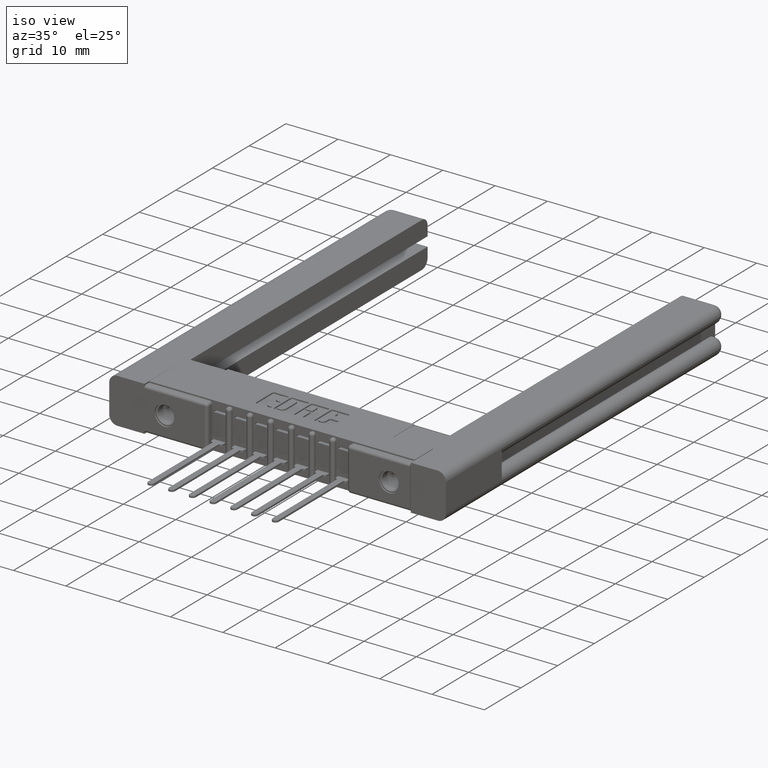
[diagram: clean part render]
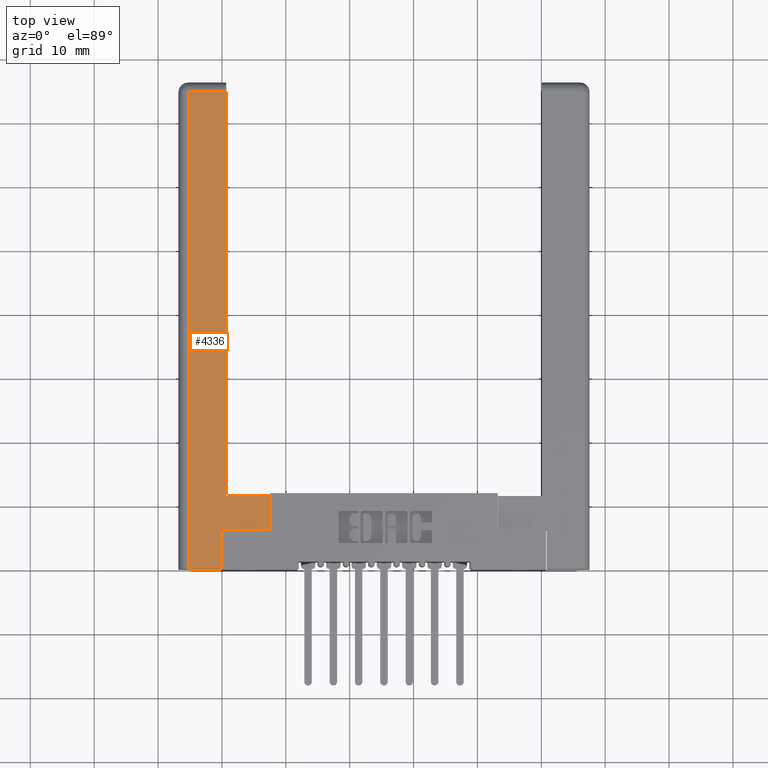
[diagram: tour spotlight — one face highlighted and labeled with its STEP entity id]
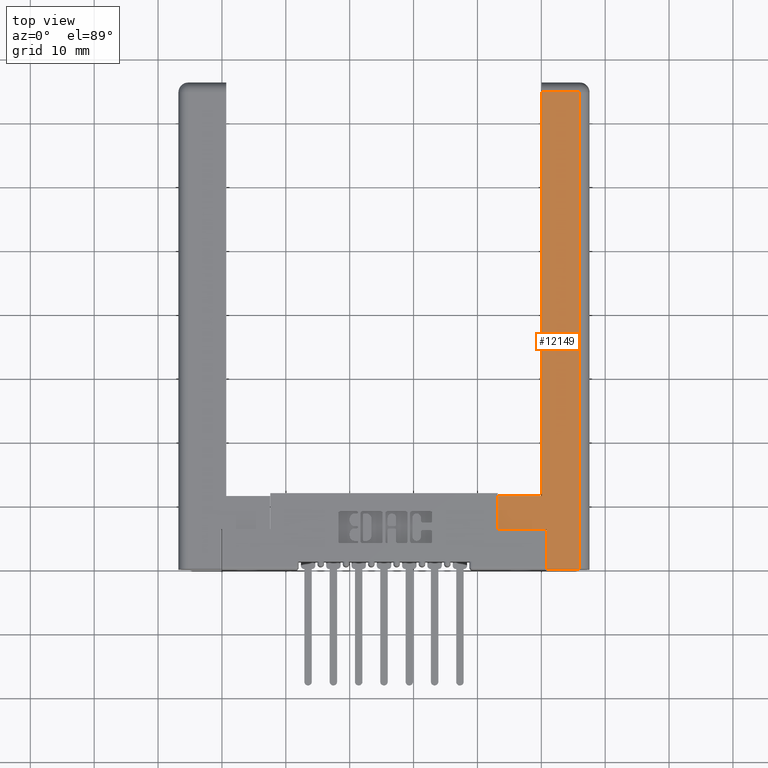
[diagram: tour spotlight — one face highlighted and labeled with its STEP entity id]
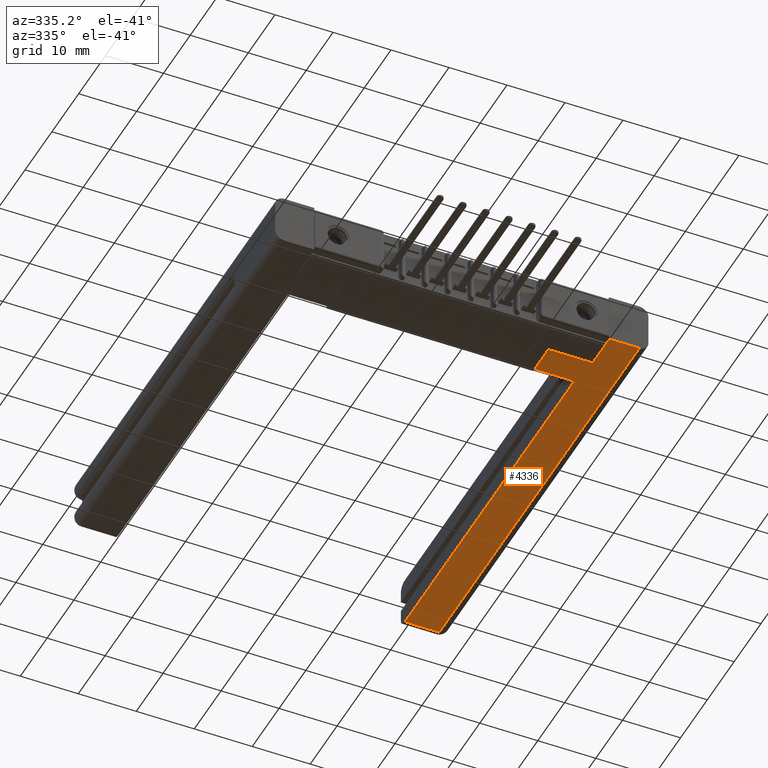
[diagram: tour spotlight — one face highlighted and labeled with its STEP entity id]
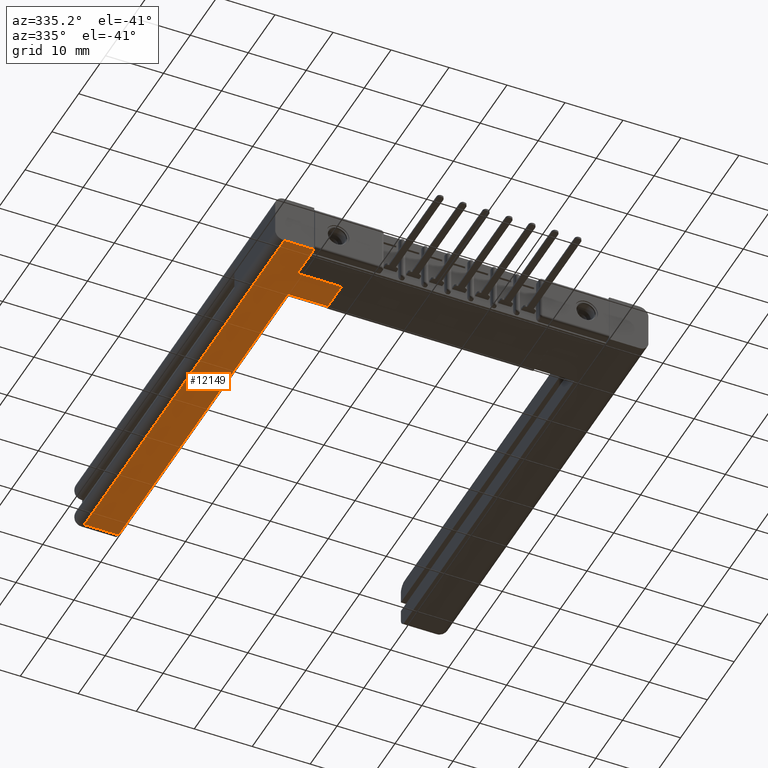
[diagram: tour spotlight — one face highlighted and labeled with its STEP entity id]
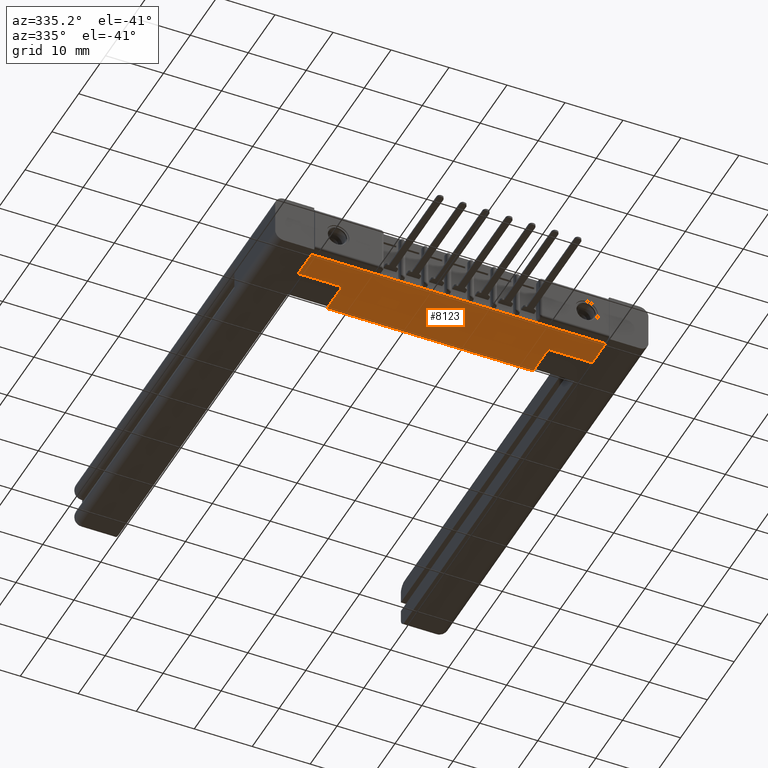
[diagram: tour spotlight — one face highlighted and labeled with its STEP entity id]
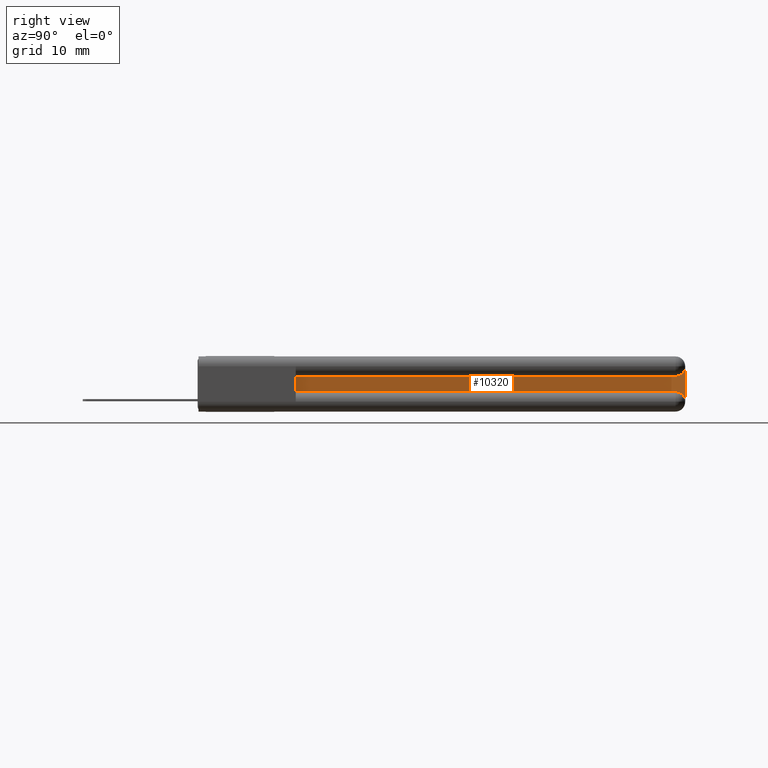
[diagram: tour spotlight — one face highlighted and labeled with its STEP entity id]
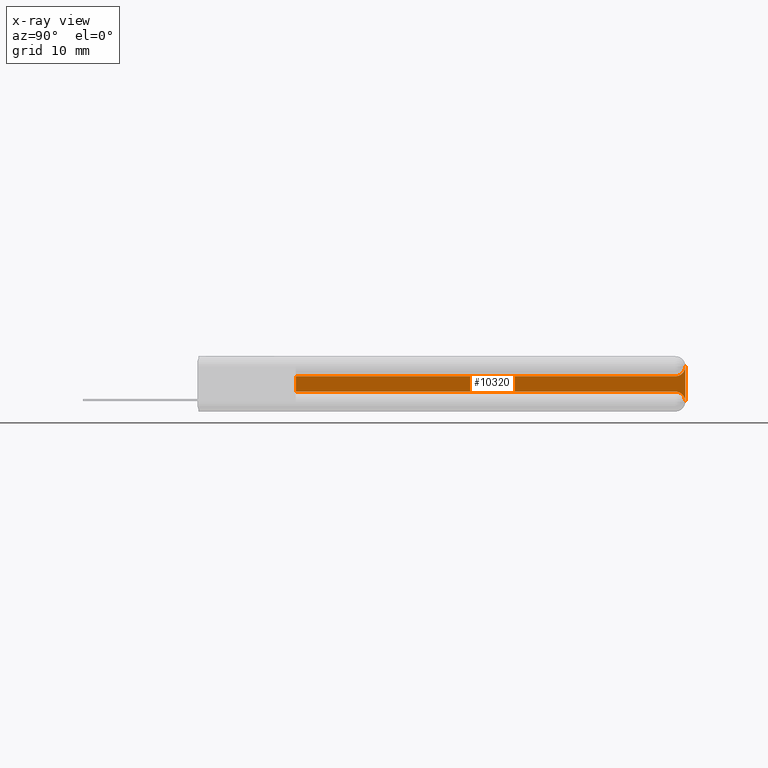
[diagram: x-ray of the same camera — body ghosted, this tour face saturated]
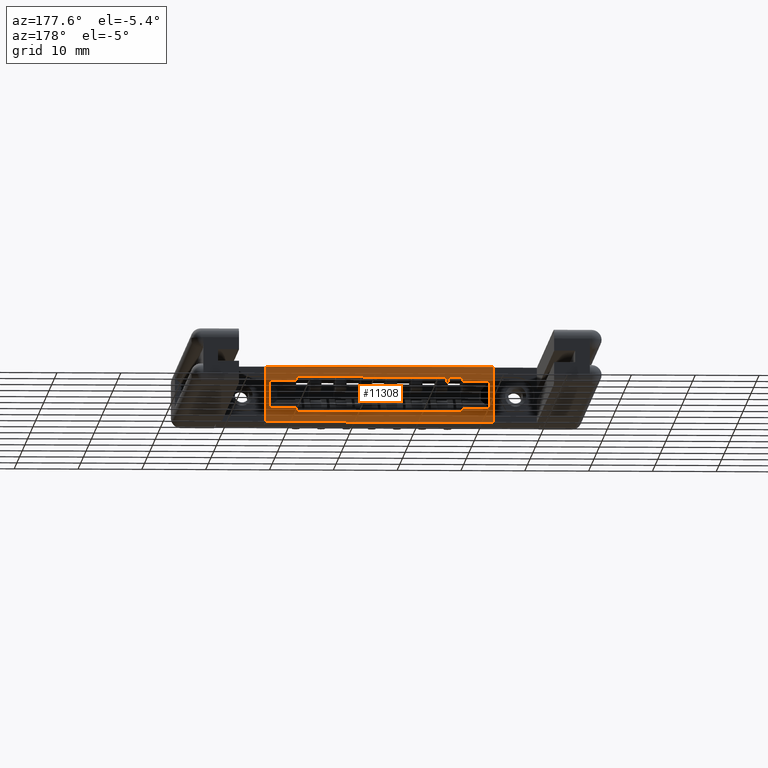
[diagram: tour spotlight — one face highlighted and labeled with its STEP entity id]
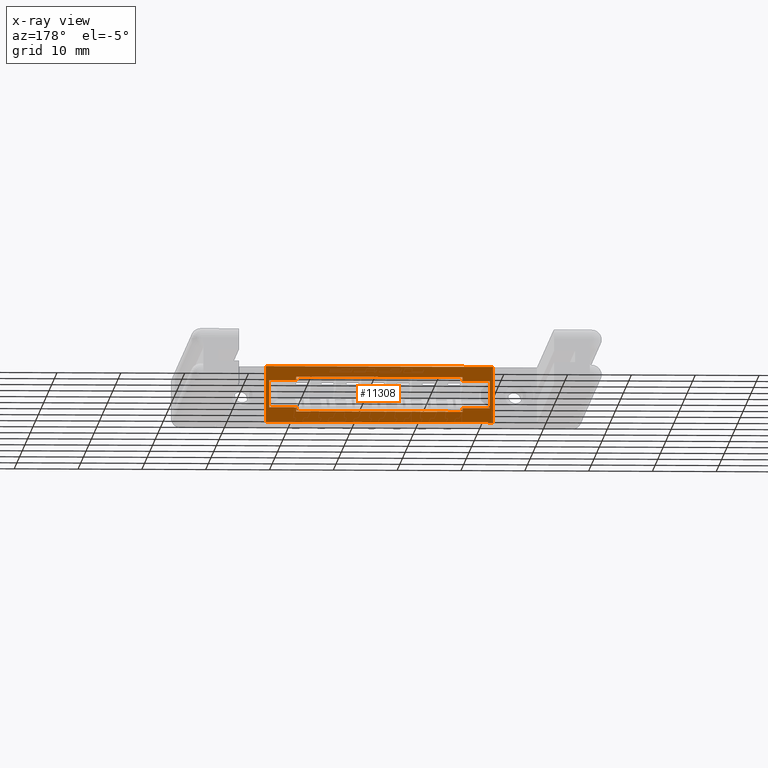
[diagram: x-ray of the same camera — body ghosted, this tour face saturated]
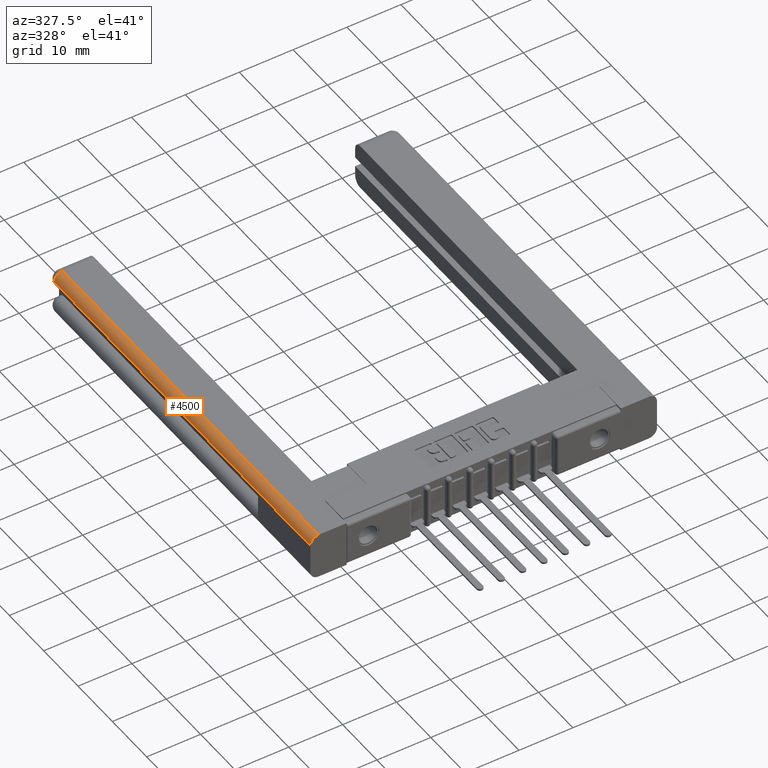
[diagram: tour spotlight — one face highlighted and labeled with its STEP entity id]
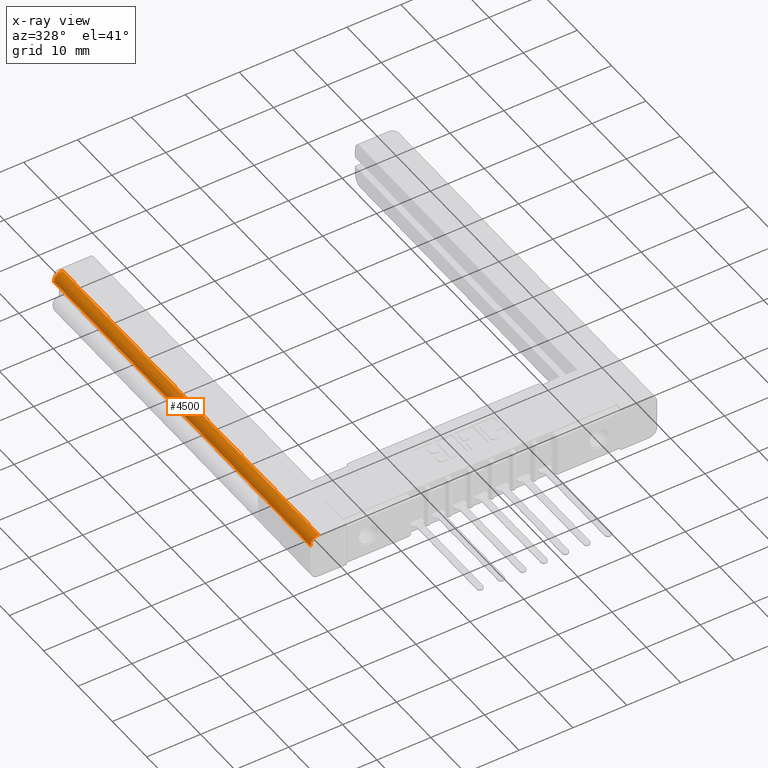
[diagram: x-ray of the same camera — body ghosted, this tour face saturated]
A machine part: a face-by-face anatomy tour. The part has 660 B-rep faces; the first image is the clean iso view, then the 8 largest visible faces are spotlighted one at a time (largest first), each with its STEP entity span.

Face 1 — top view, entity #4336. In plain terms, the highlighted planar face has unit normal (0, 0, -1).
Definition (entity closure, byte-faithful):
#83 = CARTESIAN_POINT ( 'NONE',  ( 0.5650000000000067191, 0.4500000000000003997, 0.0000000000000000000 ) ) ;
#319 = DIRECTION ( 'NONE',  ( 1.000000000000000000, 8.258606037561937049E-16, 4.510281037539667631E-17 ) ) ;
#514 = CARTESIAN_POINT ( 'NONE',  ( 0.5650000000000063860, 0.2450000000000008560, 0.0000000000000000000 ) ) ;
#538 = CARTESIAN_POINT ( 'NONE',  ( 0.06150000000000342693, 2.940000000000007052, -8.878505979408855953E-16 ) ) ;
#731 = CARTESIAN_POINT ( 'NONE',  ( 0.2650000000000033440, 1.952844464220938060E-16, -8.878505979408855953E-16 ) ) ;
#787 = ORIENTED_EDGE ( 'NONE', *, *, #10916, .T. ) ;
#975 = ORIENTED_EDGE ( 'NONE', *, *, #1508, .T. ) ;
#1076 = CARTESIAN_POINT ( 'NONE',  ( 0.2950000000000032596, 0.4500000000000002331, -8.878505979408855953E-16 ) ) ;
#1269 = VERTEX_POINT ( 'NONE', #83 ) ;
#1502 = LINE ( 'NONE', #3523, #5247 ) ;
#1508 = EDGE_CURVE ( 'NONE', #12540, #2409, #10684, .T. ) ;
#1779 = EDGE_CURVE ( 'NONE', #1855, #5654, #1502, .T. ) ;
#1855 = VERTEX_POINT ( 'NONE', #538 ) ;
#1957 = CARTESIAN_POINT ( 'NONE',  ( 0.5650000000000067191, 0.4500000000000003997, 0.0000000000000000000 ) ) ;
#2141 = ORIENTED_EDGE ( 'NONE', *, *, #9290, .T. ) ;
#2347 = EDGE_LOOP ( 'NONE', ( #975, #9787, #10313, #9506, #11131, #787, #2141, #9031 ) ) ;
#2409 = VERTEX_POINT ( 'NONE', #9083 ) ;
#2528 = CARTESIAN_POINT ( 'NONE',  ( 0.2650000000000033440, 0.2450000000000000511, -8.878505979408855953E-16 ) ) ;
#2898 = EDGE_CURVE ( 'NONE', #1269, #12540, #11054, .T. ) ;
#2916 = LINE ( 'NONE', #1957, #6302 ) ;
#3217 = VERTEX_POINT ( 'NONE', #731 ) ;
#3322 = EDGE_CURVE ( 'NONE', #3217, #12836, #7987, .T. ) ;
#3404 = VECTOR ( 'NONE', #4580, 39.37007874015748143 ) ;
#3523 = CARTESIAN_POINT ( 'NONE',  ( 0.06150000000000015177, 4.161799677847901228E-17, 0.0000000000000000000 ) ) ;
#3803 = DIRECTION ( 'NONE',  ( -1.000000000000000000, -7.120336040201832798E-16, -4.510281037539672561E-17 ) ) ;
#4234 = DIRECTION ( 'NONE',  ( 5.726536043434383541E-16, 1.000000000000000000, -2.334284690065039000E-16 ) ) ;
#4336 = ADVANCED_FACE ( 'NONE', ( #7686 ), #6645, .F. ) ;
#4384 = VECTOR ( 'NONE', #4872, 39.37007874015748143 ) ;
#4462 = VECTOR ( 'NONE', #319, 39.37007874015748143 ) ;
#4580 = DIRECTION ( 'NONE',  ( 1.000000000000000000, 7.164262422741187260E-16, 4.510281037539672561E-17 ) ) ;
#4872 = DIRECTION ( 'NONE',  ( -1.000000000000000000, -7.120336040201832798E-16, -4.510281037539672561E-17 ) ) ;
#5247 = VECTOR ( 'NONE', #7475, 39.37007874015748143 ) ;
#5653 = CARTESIAN_POINT ( 'NONE',  ( 0.0000000000000000000, 0.0000000000000000000, 0.0000000000000000000 ) ) ;
#5654 = VERTEX_POINT ( 'NONE', #11231 ) ;
#5679 = DIRECTION ( 'NONE',  ( -1.000000000000000000, -7.120336040201832798E-16, -4.510281037539672561E-17 ) ) ;
#5832 = CARTESIAN_POINT ( 'NONE',  ( 0.2950000000000065348, 3.000000000000006661, -8.878505979408855953E-16 ) ) ;
#6302 = VECTOR ( 'NONE', #10399, 39.37007874015748143 ) ;
#6529 = CARTESIAN_POINT ( 'NONE',  ( 0.06150000000000342693, 2.940000000000007052, -8.878505979408855953E-16 ) ) ;
#6551 = CARTESIAN_POINT ( 'NONE',  ( 0.2950000000000032596, 0.4500000000000002331, -8.878505979408855953E-16 ) ) ;
#6645 = PLANE ( 'NONE',  #9413 ) ;
#7250 = CARTESIAN_POINT ( 'NONE',  ( 0.5650000000000063860, 0.2450000000000008560, 0.0000000000000000000 ) ) ;
#7356 = VECTOR ( 'NONE', #8707, 39.37007874015748143 ) ;
#7475 = DIRECTION ( 'NONE',  ( -7.120336040201873227E-16, -1.000000000000000000, 2.334284690065039986E-16 ) ) ;
#7614 = LINE ( 'NONE', #12726, #3404 ) ;
#7686 = FACE_OUTER_BOUND ( 'NONE', #2347, .T. ) ;
#7987 = LINE ( 'NONE', #10279, #12500 ) ;
#8028 = VECTOR ( 'NONE', #5679, 39.37007874015748143 ) ;
#8109 = VERTEX_POINT ( 'NONE', #7250 ) ;
#8707 = DIRECTION ( 'NONE',  ( 5.915108984173514150E-16, 1.000000000000000000, -2.334284690065039000E-16 ) ) ;
#9031 = ORIENTED_EDGE ( 'NONE', *, *, #2898, .T. ) ;
#9083 = CARTESIAN_POINT ( 'NONE',  ( 0.2950000000000065348, 2.940000000000007052, -8.878505979408855953E-16 ) ) ;
#9290 = EDGE_CURVE ( 'NONE', #8109, #1269, #2916, .T. ) ;
#9413 = AXIS2_PLACEMENT_3D ( 'NONE', #5653, #9717, #3803 ) ;
#9506 = ORIENTED_EDGE ( 'NONE', *, *, #11901, .T. ) ;
#9717 = DIRECTION ( 'NONE',  ( 4.510281037539655921E-17, 2.334284690065026674E-16, -1.000000000000000000 ) ) ;
#9787 = ORIENTED_EDGE ( 'NONE', *, *, #9843, .T. ) ;
#9843 = EDGE_CURVE ( 'NONE', #2409, #1855, #11655, .T. ) ;
#10279 = CARTESIAN_POINT ( 'NONE',  ( 0.2650000000000033440, 0.2450000000000000511, -8.878505979408855953E-16 ) ) ;
#10313 = ORIENTED_EDGE ( 'NONE', *, *, #1779, .T. ) ;
#10399 = DIRECTION ( 'NONE',  ( 1.045185798369489488E-15, 1.000000000000000000, -2.334284690065038507E-16 ) ) ;
#10684 = LINE ( 'NONE', #5832, #7356 ) ;
#10916 = EDGE_CURVE ( 'NONE', #12836, #8109, #11385, .T. ) ;
#11054 = LINE ( 'NONE', #1076, #4384 ) ;
#11131 = ORIENTED_EDGE ( 'NONE', *, *, #3322, .T. ) ;
#11231 = CARTESIAN_POINT ( 'NONE',  ( 0.06149999999999987421, 4.161799677847901228E-17, 0.0000000000000000000 ) ) ;
#11385 = LINE ( 'NONE', #514, #4462 ) ;
#11655 = LINE ( 'NONE', #6529, #8028 ) ;
#11901 = EDGE_CURVE ( 'NONE', #5654, #3217, #7614, .T. ) ;
#12500 = VECTOR ( 'NONE', #4234, 39.37007874015748143 ) ;
#12540 = VERTEX_POINT ( 'NONE', #6551 ) ;
#12726 = CARTESIAN_POINT ( 'NONE',  ( 0.2650000000000033440, 1.952844464220938060E-16, -8.878505979408855953E-16 ) ) ;
#12836 = VERTEX_POINT ( 'NONE', #2528 ) ;

Face 2 — top view, entity #12149. In plain terms, the highlighted planar face has unit normal (-0, 0, 1).
Definition (entity closure, byte-faithful):
#212 = CARTESIAN_POINT ( 'NONE',  ( 0.5650000000000069411, 0.4500000000000003997, -0.3400000000000018563 ) ) ;
#529 = EDGE_CURVE ( 'NONE', #2306, #10887, #2506, .T. ) ;
#584 = ORIENTED_EDGE ( 'NONE', *, *, #9783, .F. ) ;
#702 = DIRECTION ( 'NONE',  ( 5.915108984173514150E-16, 1.000000000000000000, -2.334284690065039000E-16 ) ) ;
#716 = DIRECTION ( 'NONE',  ( 5.726536043434383541E-16, 1.000000000000000000, -2.334284690065039000E-16 ) ) ;
#896 = EDGE_CURVE ( 'NONE', #2306, #6516, #3326, .T. ) ;
#1483 = ORIENTED_EDGE ( 'NONE', *, *, #896, .T. ) ;
#1520 = EDGE_CURVE ( 'NONE', #10887, #3227, #8575, .T. ) ;
#1605 = CARTESIAN_POINT ( 'NONE',  ( 0.5650000000000069411, 0.4500000000000003997, -0.3400000000000018563 ) ) ;
#1651 = DIRECTION ( 'NONE',  ( 1.000000000000000000, 7.164262422741187260E-16, 4.510281037539672561E-17 ) ) ;
#1693 = ORIENTED_EDGE ( 'NONE', *, *, #11143, .F. ) ;
#1739 = LINE ( 'NONE', #4008, #7122 ) ;
#1810 = VECTOR ( 'NONE', #1651, 39.37007874015748143 ) ;
#2228 = DIRECTION ( 'NONE',  ( -1.000000000000000000, -7.120336040201832798E-16, -4.510281037539672561E-17 ) ) ;
#2306 = VERTEX_POINT ( 'NONE', #9609 ) ;
#2312 = DIRECTION ( 'NONE',  ( 1.000000000000000000, 8.258606037561937049E-16, 4.510281037539667631E-17 ) ) ;
#2506 = LINE ( 'NONE', #10651, #1810 ) ;
#3073 = CARTESIAN_POINT ( 'NONE',  ( 0.2950000000000062572, 0.4500000000000002331, -0.3400000000000031886 ) ) ;
#3227 = VERTEX_POINT ( 'NONE', #6829 ) ;
#3326 = LINE ( 'NONE', #7478, #7793 ) ;
#3330 = CARTESIAN_POINT ( 'NONE',  ( 0.5650000000000067191, 0.2450000000000008560, -0.3400000000000018563 ) ) ;
#3501 = EDGE_LOOP ( 'NONE', ( #1483, #9934, #1693, #3815, #9000, #584, #12329, #3686 ) ) ;
#3631 = LINE ( 'NONE', #12701, #5506 ) ;
#3686 = ORIENTED_EDGE ( 'NONE', *, *, #529, .F. ) ;
#3815 = ORIENTED_EDGE ( 'NONE', *, *, #7702, .F. ) ;
#4008 = CARTESIAN_POINT ( 'NONE',  ( 3.551402391763542381E-15, 2.940000000000007052, -0.3400000000000031886 ) ) ;
#4097 = EDGE_CURVE ( 'NONE', #6516, #11387, #1739, .T. ) ;
#4138 = DIRECTION ( 'NONE',  ( 1.000000000000000000, 7.120336040201832798E-16, 4.510281037539672561E-17 ) ) ;
#4672 = DIRECTION ( 'NONE',  ( 1.045185798369489488E-15, 1.000000000000000000, -2.334284690065038507E-16 ) ) ;
#4779 = CARTESIAN_POINT ( 'NONE',  ( 0.0000000000000000000, 8.323599355695802456E-17, -0.3400000000000018563 ) ) ;
#5107 = AXIS2_PLACEMENT_3D ( 'NONE', #4779, #6961, #8978 ) ;
#5506 = VECTOR ( 'NONE', #702, 39.37007874015748143 ) ;
#5624 = CARTESIAN_POINT ( 'NONE',  ( 0.2650000000000063416, 0.2450000000000000511, -0.3400000000000031886 ) ) ;
#5675 = VERTEX_POINT ( 'NONE', #3073 ) ;
#6361 = VECTOR ( 'NONE', #2228, 39.37007874015748143 ) ;
#6516 = VERTEX_POINT ( 'NONE', #9848 ) ;
#6829 = CARTESIAN_POINT ( 'NONE',  ( 0.2650000000000063416, 0.2450000000000000511, -0.3400000000000031886 ) ) ;
#6961 = DIRECTION ( 'NONE',  ( 4.510281037539655921E-17, 2.334284690065026674E-16, -1.000000000000000000 ) ) ;
#7122 = VECTOR ( 'NONE', #4138, 39.37007874015748143 ) ;
#7289 = LINE ( 'NONE', #11112, #11798 ) ;
#7478 = CARTESIAN_POINT ( 'NONE',  ( 0.06150000000000015177, 1.248539903354370368E-16, -0.3400000000000018563 ) ) ;
#7702 = EDGE_CURVE ( 'NONE', #12306, #5675, #12308, .T. ) ;
#7793 = VECTOR ( 'NONE', #12394, 39.37007874015748143 ) ;
#8575 = LINE ( 'NONE', #5624, #12596 ) ;
#8603 = VECTOR ( 'NONE', #4672, 39.37007874015748143 ) ;
#8978 = DIRECTION ( 'NONE',  ( -1.000000000000000000, -7.120336040201832798E-16, -4.510281037539672561E-17 ) ) ;
#9000 = ORIENTED_EDGE ( 'NONE', *, *, #9537, .F. ) ;
#9537 = EDGE_CURVE ( 'NONE', #11814, #12306, #11645, .T. ) ;
#9609 = CARTESIAN_POINT ( 'NONE',  ( 0.06150000000000015177, 1.248539903354370368E-16, -0.3400000000000018563 ) ) ;
#9783 = EDGE_CURVE ( 'NONE', #3227, #11814, #7289, .T. ) ;
#9831 = FACE_OUTER_BOUND ( 'NONE', #3501, .T. ) ;
#9848 = CARTESIAN_POINT ( 'NONE',  ( 0.06150000000000370448, 2.940000000000007052, -0.3400000000000031886 ) ) ;
#9867 = CARTESIAN_POINT ( 'NONE',  ( 0.2950000000000065348, 2.940000000000007052, -0.3400000000000031886 ) ) ;
#9934 = ORIENTED_EDGE ( 'NONE', *, *, #4097, .T. ) ;
#10651 = CARTESIAN_POINT ( 'NONE',  ( 0.2650000000000033440, 2.785204399790518552E-16, -0.3400000000000031886 ) ) ;
#10887 = VERTEX_POINT ( 'NONE', #12781 ) ;
#11112 = CARTESIAN_POINT ( 'NONE',  ( 0.5650000000000067191, 0.2450000000000008560, -0.3400000000000018563 ) ) ;
#11143 = EDGE_CURVE ( 'NONE', #5675, #11387, #3631, .T. ) ;
#11387 = VERTEX_POINT ( 'NONE', #9867 ) ;
#11645 = LINE ( 'NONE', #1605, #8603 ) ;
#11798 = VECTOR ( 'NONE', #2312, 39.37007874015748143 ) ;
#11814 = VERTEX_POINT ( 'NONE', #3330 ) ;
#11887 = PLANE ( 'NONE',  #5107 ) ;
#12149 = ADVANCED_FACE ( 'NONE', ( #9831 ), #11887, .T. ) ;
#12306 = VERTEX_POINT ( 'NONE', #212 ) ;
#12308 = LINE ( 'NONE', #12366, #6361 ) ;
#12329 = ORIENTED_EDGE ( 'NONE', *, *, #1520, .F. ) ;
#12366 = CARTESIAN_POINT ( 'NONE',  ( 0.2950000000000062572, 0.4500000000000002331, -0.3400000000000031886 ) ) ;
#12394 = DIRECTION ( 'NONE',  ( 7.120336040201873227E-16, 1.000000000000000000, -2.334284690065039986E-16 ) ) ;
#12596 = VECTOR ( 'NONE', #716, 39.37007874015748143 ) ;
#12701 = CARTESIAN_POINT ( 'NONE',  ( 0.2950000000000065348, 3.000000000000006661, -0.3400000000000031886 ) ) ;
#12781 = CARTESIAN_POINT ( 'NONE',  ( 0.2650000000000033440, 2.785204399790518552E-16, -0.3400000000000031886 ) ) ;

Face 3 — auxiliary view, entity #4336. In plain terms, the highlighted planar face has unit normal (-0, 0, 1).
Definition (entity closure, byte-faithful):
#83 = CARTESIAN_POINT ( 'NONE',  ( 0.5650000000000067191, 0.4500000000000003997, 0.0000000000000000000 ) ) ;
#319 = DIRECTION ( 'NONE',  ( 1.000000000000000000, 8.258606037561937049E-16, 4.510281037539667631E-17 ) ) ;
#514 = CARTESIAN_POINT ( 'NONE',  ( 0.5650000000000063860, 0.2450000000000008560, 0.0000000000000000000 ) ) ;
#538 = CARTESIAN_POINT ( 'NONE',  ( 0.06150000000000342693, 2.940000000000007052, -8.878505979408855953E-16 ) ) ;
#731 = CARTESIAN_POINT ( 'NONE',  ( 0.2650000000000033440, 1.952844464220938060E-16, -8.878505979408855953E-16 ) ) ;
#787 = ORIENTED_EDGE ( 'NONE', *, *, #10916, .T. ) ;
#975 = ORIENTED_EDGE ( 'NONE', *, *, #1508, .T. ) ;
#1076 = CARTESIAN_POINT ( 'NONE',  ( 0.2950000000000032596, 0.4500000000000002331, -8.878505979408855953E-16 ) ) ;
#1269 = VERTEX_POINT ( 'NONE', #83 ) ;
#1502 = LINE ( 'NONE', #3523, #5247 ) ;
#1508 = EDGE_CURVE ( 'NONE', #12540, #2409, #10684, .T. ) ;
#1779 = EDGE_CURVE ( 'NONE', #1855, #5654, #1502, .T. ) ;
#1855 = VERTEX_POINT ( 'NONE', #538 ) ;
#1957 = CARTESIAN_POINT ( 'NONE',  ( 0.5650000000000067191, 0.4500000000000003997, 0.0000000000000000000 ) ) ;
#2141 = ORIENTED_EDGE ( 'NONE', *, *, #9290, .T. ) ;
#2347 = EDGE_LOOP ( 'NONE', ( #975, #9787, #10313, #9506, #11131, #787, #2141, #9031 ) ) ;
#2409 = VERTEX_POINT ( 'NONE', #9083 ) ;
#2528 = CARTESIAN_POINT ( 'NONE',  ( 0.2650000000000033440, 0.2450000000000000511, -8.878505979408855953E-16 ) ) ;
#2898 = EDGE_CURVE ( 'NONE', #1269, #12540, #11054, .T. ) ;
#2916 = LINE ( 'NONE', #1957, #6302 ) ;
#3217 = VERTEX_POINT ( 'NONE', #731 ) ;
#3322 = EDGE_CURVE ( 'NONE', #3217, #12836, #7987, .T. ) ;
#3404 = VECTOR ( 'NONE', #4580, 39.37007874015748143 ) ;
#3523 = CARTESIAN_POINT ( 'NONE',  ( 0.06150000000000015177, 4.161799677847901228E-17, 0.0000000000000000000 ) ) ;
#3803 = DIRECTION ( 'NONE',  ( -1.000000000000000000, -7.120336040201832798E-16, -4.510281037539672561E-17 ) ) ;
#4234 = DIRECTION ( 'NONE',  ( 5.726536043434383541E-16, 1.000000000000000000, -2.334284690065039000E-16 ) ) ;
#4336 = ADVANCED_FACE ( 'NONE', ( #7686 ), #6645, .F. ) ;
#4384 = VECTOR ( 'NONE', #4872, 39.37007874015748143 ) ;
#4462 = VECTOR ( 'NONE', #319, 39.37007874015748143 ) ;
#4580 = DIRECTION ( 'NONE',  ( 1.000000000000000000, 7.164262422741187260E-16, 4.510281037539672561E-17 ) ) ;
#4872 = DIRECTION ( 'NONE',  ( -1.000000000000000000, -7.120336040201832798E-16, -4.510281037539672561E-17 ) ) ;
#5247 = VECTOR ( 'NONE', #7475, 39.37007874015748143 ) ;
#5653 = CARTESIAN_POINT ( 'NONE',  ( 0.0000000000000000000, 0.0000000000000000000, 0.0000000000000000000 ) ) ;
#5654 = VERTEX_POINT ( 'NONE', #11231 ) ;
#5679 = DIRECTION ( 'NONE',  ( -1.000000000000000000, -7.120336040201832798E-16, -4.510281037539672561E-17 ) ) ;
#5832 = CARTESIAN_POINT ( 'NONE',  ( 0.2950000000000065348, 3.000000000000006661, -8.878505979408855953E-16 ) ) ;
#6302 = VECTOR ( 'NONE', #10399, 39.37007874015748143 ) ;
#6529 = CARTESIAN_POINT ( 'NONE',  ( 0.06150000000000342693, 2.940000000000007052, -8.878505979408855953E-16 ) ) ;
#6551 = CARTESIAN_POINT ( 'NONE',  ( 0.2950000000000032596, 0.4500000000000002331, -8.878505979408855953E-16 ) ) ;
#6645 = PLANE ( 'NONE',  #9413 ) ;
#7250 = CARTESIAN_POINT ( 'NONE',  ( 0.5650000000000063860, 0.2450000000000008560, 0.0000000000000000000 ) ) ;
#7356 = VECTOR ( 'NONE', #8707, 39.37007874015748143 ) ;
#7475 = DIRECTION ( 'NONE',  ( -7.120336040201873227E-16, -1.000000000000000000, 2.334284690065039986E-16 ) ) ;
#7614 = LINE ( 'NONE', #12726, #3404 ) ;
#7686 = FACE_OUTER_BOUND ( 'NONE', #2347, .T. ) ;
#7987 = LINE ( 'NONE', #10279, #12500 ) ;
#8028 = VECTOR ( 'NONE', #5679, 39.37007874015748143 ) ;
#8109 = VERTEX_POINT ( 'NONE', #7250 ) ;
#8707 = DIRECTION ( 'NONE',  ( 5.915108984173514150E-16, 1.000000000000000000, -2.334284690065039000E-16 ) ) ;
#9031 = ORIENTED_EDGE ( 'NONE', *, *, #2898, .T. ) ;
#9083 = CARTESIAN_POINT ( 'NONE',  ( 0.2950000000000065348, 2.940000000000007052, -8.878505979408855953E-16 ) ) ;
#9290 = EDGE_CURVE ( 'NONE', #8109, #1269, #2916, .T. ) ;
#9413 = AXIS2_PLACEMENT_3D ( 'NONE', #5653, #9717, #3803 ) ;
#9506 = ORIENTED_EDGE ( 'NONE', *, *, #11901, .T. ) ;
#9717 = DIRECTION ( 'NONE',  ( 4.510281037539655921E-17, 2.334284690065026674E-16, -1.000000000000000000 ) ) ;
#9787 = ORIENTED_EDGE ( 'NONE', *, *, #9843, .T. ) ;
#9843 = EDGE_CURVE ( 'NONE', #2409, #1855, #11655, .T. ) ;
#10279 = CARTESIAN_POINT ( 'NONE',  ( 0.2650000000000033440, 0.2450000000000000511, -8.878505979408855953E-16 ) ) ;
#10313 = ORIENTED_EDGE ( 'NONE', *, *, #1779, .T. ) ;
#10399 = DIRECTION ( 'NONE',  ( 1.045185798369489488E-15, 1.000000000000000000, -2.334284690065038507E-16 ) ) ;
#10684 = LINE ( 'NONE', #5832, #7356 ) ;
#10916 = EDGE_CURVE ( 'NONE', #12836, #8109, #11385, .T. ) ;
#11054 = LINE ( 'NONE', #1076, #4384 ) ;
#11131 = ORIENTED_EDGE ( 'NONE', *, *, #3322, .T. ) ;
#11231 = CARTESIAN_POINT ( 'NONE',  ( 0.06149999999999987421, 4.161799677847901228E-17, 0.0000000000000000000 ) ) ;
#11385 = LINE ( 'NONE', #514, #4462 ) ;
#11655 = LINE ( 'NONE', #6529, #8028 ) ;
#11901 = EDGE_CURVE ( 'NONE', #5654, #3217, #7614, .T. ) ;
#12500 = VECTOR ( 'NONE', #4234, 39.37007874015748143 ) ;
#12540 = VERTEX_POINT ( 'NONE', #6551 ) ;
#12726 = CARTESIAN_POINT ( 'NONE',  ( 0.2650000000000033440, 1.952844464220938060E-16, -8.878505979408855953E-16 ) ) ;
#12836 = VERTEX_POINT ( 'NONE', #2528 ) ;

Face 4 — auxiliary view, entity #12149. In plain terms, the highlighted planar face has unit normal (0, 0, -1).
Definition (entity closure, byte-faithful):
#212 = CARTESIAN_POINT ( 'NONE',  ( 0.5650000000000069411, 0.4500000000000003997, -0.3400000000000018563 ) ) ;
#529 = EDGE_CURVE ( 'NONE', #2306, #10887, #2506, .T. ) ;
#584 = ORIENTED_EDGE ( 'NONE', *, *, #9783, .F. ) ;
#702 = DIRECTION ( 'NONE',  ( 5.915108984173514150E-16, 1.000000000000000000, -2.334284690065039000E-16 ) ) ;
#716 = DIRECTION ( 'NONE',  ( 5.726536043434383541E-16, 1.000000000000000000, -2.334284690065039000E-16 ) ) ;
#896 = EDGE_CURVE ( 'NONE', #2306, #6516, #3326, .T. ) ;
#1483 = ORIENTED_EDGE ( 'NONE', *, *, #896, .T. ) ;
#1520 = EDGE_CURVE ( 'NONE', #10887, #3227, #8575, .T. ) ;
#1605 = CARTESIAN_POINT ( 'NONE',  ( 0.5650000000000069411, 0.4500000000000003997, -0.3400000000000018563 ) ) ;
#1651 = DIRECTION ( 'NONE',  ( 1.000000000000000000, 7.164262422741187260E-16, 4.510281037539672561E-17 ) ) ;
#1693 = ORIENTED_EDGE ( 'NONE', *, *, #11143, .F. ) ;
#1739 = LINE ( 'NONE', #4008, #7122 ) ;
#1810 = VECTOR ( 'NONE', #1651, 39.37007874015748143 ) ;
#2228 = DIRECTION ( 'NONE',  ( -1.000000000000000000, -7.120336040201832798E-16, -4.510281037539672561E-17 ) ) ;
#2306 = VERTEX_POINT ( 'NONE', #9609 ) ;
#2312 = DIRECTION ( 'NONE',  ( 1.000000000000000000, 8.258606037561937049E-16, 4.510281037539667631E-17 ) ) ;
#2506 = LINE ( 'NONE', #10651, #1810 ) ;
#3073 = CARTESIAN_POINT ( 'NONE',  ( 0.2950000000000062572, 0.4500000000000002331, -0.3400000000000031886 ) ) ;
#3227 = VERTEX_POINT ( 'NONE', #6829 ) ;
#3326 = LINE ( 'NONE', #7478, #7793 ) ;
#3330 = CARTESIAN_POINT ( 'NONE',  ( 0.5650000000000067191, 0.2450000000000008560, -0.3400000000000018563 ) ) ;
#3501 = EDGE_LOOP ( 'NONE', ( #1483, #9934, #1693, #3815, #9000, #584, #12329, #3686 ) ) ;
#3631 = LINE ( 'NONE', #12701, #5506 ) ;
#3686 = ORIENTED_EDGE ( 'NONE', *, *, #529, .F. ) ;
#3815 = ORIENTED_EDGE ( 'NONE', *, *, #7702, .F. ) ;
#4008 = CARTESIAN_POINT ( 'NONE',  ( 3.551402391763542381E-15, 2.940000000000007052, -0.3400000000000031886 ) ) ;
#4097 = EDGE_CURVE ( 'NONE', #6516, #11387, #1739, .T. ) ;
#4138 = DIRECTION ( 'NONE',  ( 1.000000000000000000, 7.120336040201832798E-16, 4.510281037539672561E-17 ) ) ;
#4672 = DIRECTION ( 'NONE',  ( 1.045185798369489488E-15, 1.000000000000000000, -2.334284690065038507E-16 ) ) ;
#4779 = CARTESIAN_POINT ( 'NONE',  ( 0.0000000000000000000, 8.323599355695802456E-17, -0.3400000000000018563 ) ) ;
#5107 = AXIS2_PLACEMENT_3D ( 'NONE', #4779, #6961, #8978 ) ;
#5506 = VECTOR ( 'NONE', #702, 39.37007874015748143 ) ;
#5624 = CARTESIAN_POINT ( 'NONE',  ( 0.2650000000000063416, 0.2450000000000000511, -0.3400000000000031886 ) ) ;
#5675 = VERTEX_POINT ( 'NONE', #3073 ) ;
#6361 = VECTOR ( 'NONE', #2228, 39.37007874015748143 ) ;
#6516 = VERTEX_POINT ( 'NONE', #9848 ) ;
#6829 = CARTESIAN_POINT ( 'NONE',  ( 0.2650000000000063416, 0.2450000000000000511, -0.3400000000000031886 ) ) ;
#6961 = DIRECTION ( 'NONE',  ( 4.510281037539655921E-17, 2.334284690065026674E-16, -1.000000000000000000 ) ) ;
#7122 = VECTOR ( 'NONE', #4138, 39.37007874015748143 ) ;
#7289 = LINE ( 'NONE', #11112, #11798 ) ;
#7478 = CARTESIAN_POINT ( 'NONE',  ( 0.06150000000000015177, 1.248539903354370368E-16, -0.3400000000000018563 ) ) ;
#7702 = EDGE_CURVE ( 'NONE', #12306, #5675, #12308, .T. ) ;
#7793 = VECTOR ( 'NONE', #12394, 39.37007874015748143 ) ;
#8575 = LINE ( 'NONE', #5624, #12596 ) ;
#8603 = VECTOR ( 'NONE', #4672, 39.37007874015748143 ) ;
#8978 = DIRECTION ( 'NONE',  ( -1.000000000000000000, -7.120336040201832798E-16, -4.510281037539672561E-17 ) ) ;
#9000 = ORIENTED_EDGE ( 'NONE', *, *, #9537, .F. ) ;
#9537 = EDGE_CURVE ( 'NONE', #11814, #12306, #11645, .T. ) ;
#9609 = CARTESIAN_POINT ( 'NONE',  ( 0.06150000000000015177, 1.248539903354370368E-16, -0.3400000000000018563 ) ) ;
#9783 = EDGE_CURVE ( 'NONE', #3227, #11814, #7289, .T. ) ;
#9831 = FACE_OUTER_BOUND ( 'NONE', #3501, .T. ) ;
#9848 = CARTESIAN_POINT ( 'NONE',  ( 0.06150000000000370448, 2.940000000000007052, -0.3400000000000031886 ) ) ;
#9867 = CARTESIAN_POINT ( 'NONE',  ( 0.2950000000000065348, 2.940000000000007052, -0.3400000000000031886 ) ) ;
#9934 = ORIENTED_EDGE ( 'NONE', *, *, #4097, .T. ) ;
#10651 = CARTESIAN_POINT ( 'NONE',  ( 0.2650000000000033440, 2.785204399790518552E-16, -0.3400000000000031886 ) ) ;
#10887 = VERTEX_POINT ( 'NONE', #12781 ) ;
#11112 = CARTESIAN_POINT ( 'NONE',  ( 0.5650000000000067191, 0.2450000000000008560, -0.3400000000000018563 ) ) ;
#11143 = EDGE_CURVE ( 'NONE', #5675, #11387, #3631, .T. ) ;
#11387 = VERTEX_POINT ( 'NONE', #9867 ) ;
#11645 = LINE ( 'NONE', #1605, #8603 ) ;
#11798 = VECTOR ( 'NONE', #2312, 39.37007874015748143 ) ;
#11814 = VERTEX_POINT ( 'NONE', #3330 ) ;
#11887 = PLANE ( 'NONE',  #5107 ) ;
#12149 = ADVANCED_FACE ( 'NONE', ( #9831 ), #11887, .T. ) ;
#12306 = VERTEX_POINT ( 'NONE', #212 ) ;
#12308 = LINE ( 'NONE', #12366, #6361 ) ;
#12329 = ORIENTED_EDGE ( 'NONE', *, *, #1520, .F. ) ;
#12366 = CARTESIAN_POINT ( 'NONE',  ( 0.2950000000000062572, 0.4500000000000002331, -0.3400000000000031886 ) ) ;
#12394 = DIRECTION ( 'NONE',  ( 7.120336040201873227E-16, 1.000000000000000000, -2.334284690065039986E-16 ) ) ;
#12596 = VECTOR ( 'NONE', #716, 39.37007874015748143 ) ;
#12701 = CARTESIAN_POINT ( 'NONE',  ( 0.2950000000000065348, 3.000000000000006661, -0.3400000000000031886 ) ) ;
#12781 = CARTESIAN_POINT ( 'NONE',  ( 0.2650000000000033440, 2.785204399790518552E-16, -0.3400000000000031886 ) ) ;

Face 5 — auxiliary view, entity #8123. In plain terms, the highlighted planar face has unit normal (0, 0, 1).
Definition (entity closure, byte-faithful):
#53 = EDGE_CURVE ( 'NONE', #8221, #2512, #2290, .T. ) ;
#316 = AXIS2_PLACEMENT_3D ( 'NONE', #690, #9656, #10728 ) ;
#592 = CARTESIAN_POINT ( 'NONE',  ( 1.997999999999999998, 0.05099999999999999672, -0.3430000000000000271 ) ) ;
#690 = CARTESIAN_POINT ( 'NONE',  ( 0.0000000000000000000, 0.4729999999999999760, -0.3430000000000000271 ) ) ;
#1224 = EDGE_CURVE ( 'NONE', #3533, #9216, #1983, .T. ) ;
#1232 = DIRECTION ( 'NONE',  ( -0.0000000000000000000, -1.000000000000000000, -0.0000000000000000000 ) ) ;
#1328 = ORIENTED_EDGE ( 'NONE', *, *, #3493, .F. ) ;
#1432 = EDGE_CURVE ( 'NONE', #8221, #3533, #11401, .T. ) ;
#1542 = VERTEX_POINT ( 'NONE', #592 ) ;
#1815 = LINE ( 'NONE', #11571, #2338 ) ;
#1842 = DIRECTION ( 'NONE',  ( -0.0000000000000000000, 1.000000000000000000, -0.0000000000000000000 ) ) ;
#1863 = EDGE_LOOP ( 'NONE', ( #4308, #1328, #7516, #2079, #5729, #6047, #7952, #4805 ) ) ;
#1983 = LINE ( 'NONE', #3123, #3974 ) ;
#2079 = ORIENTED_EDGE ( 'NONE', *, *, #1432, .F. ) ;
#2290 = LINE ( 'NONE', #5421, #4155 ) ;
#2338 = VECTOR ( 'NONE', #9597, 39.37007874015748143 ) ;
#2512 = VERTEX_POINT ( 'NONE', #11014 ) ;
#2535 = CARTESIAN_POINT ( 'NONE',  ( 0.4730000000000003646, 0.05099999999999999672, -0.3430000000000000271 ) ) ;
#2545 = VERTEX_POINT ( 'NONE', #9271 ) ;
#2897 = CARTESIAN_POINT ( 'NONE',  ( 0.0000000000000000000, 0.4729999999999999760, -0.3430000000000000271 ) ) ;
#3123 = CARTESIAN_POINT ( 'NONE',  ( 0.0000000000000000000, 0.4729999999999999760, -0.3430000000000000271 ) ) ;
#3180 = EDGE_CURVE ( 'NONE', #2545, #4654, #6889, .T. ) ;
#3493 = EDGE_CURVE ( 'NONE', #9216, #1542, #6470, .T. ) ;
#3533 = VERTEX_POINT ( 'NONE', #11791 ) ;
#3814 = LINE ( 'NONE', #2897, #10351 ) ;
#3974 = VECTOR ( 'NONE', #1232, 39.37007874015748143 ) ;
#4058 = EDGE_CURVE ( 'NONE', #11142, #2545, #1815, .T. ) ;
#4114 = VECTOR ( 'NONE', #6540, 39.37007874015748143 ) ;
#4155 = VECTOR ( 'NONE', #11274, 39.37007874015748143 ) ;
#4308 = ORIENTED_EDGE ( 'NONE', *, *, #8264, .T. ) ;
#4596 = PLANE ( 'NONE',  #316 ) ;
#4654 = VERTEX_POINT ( 'NONE', #7340 ) ;
#4669 = FACE_OUTER_BOUND ( 'NONE', #1863, .T. ) ;
#4737 = DIRECTION ( 'NONE',  ( -0.0000000000000000000, -1.000000000000000000, -0.0000000000000000000 ) ) ;
#4805 = ORIENTED_EDGE ( 'NONE', *, *, #4058, .F. ) ;
#4913 = CARTESIAN_POINT ( 'NONE',  ( 1.700000000000000178, 0.2499999999999999722, -0.3430000000000000271 ) ) ;
#5317 = VECTOR ( 'NONE', #4737, 39.37007874015748143 ) ;
#5421 = CARTESIAN_POINT ( 'NONE',  ( 0.2979999999999998206, 0.2499999999999999722, -0.3430000000000000271 ) ) ;
#5698 = VECTOR ( 'NONE', #12449, 39.37007874015748143 ) ;
#5729 = ORIENTED_EDGE ( 'NONE', *, *, #53, .T. ) ;
#6047 = ORIENTED_EDGE ( 'NONE', *, *, #8315, .F. ) ;
#6470 = LINE ( 'NONE', #2535, #4114 ) ;
#6540 = DIRECTION ( 'NONE',  ( 1.000000000000000000, 0.0000000000000000000, 0.0000000000000000000 ) ) ;
#6727 = CARTESIAN_POINT ( 'NONE',  ( 1.997999999999999998, 0.2499999999999999722, -0.3430000000000000271 ) ) ;
#6889 = LINE ( 'NONE', #4913, #11740 ) ;
#7340 = CARTESIAN_POINT ( 'NONE',  ( 1.700000000000000178, 0.4729999999999999760, -0.3430000000000000271 ) ) ;
#7516 = ORIENTED_EDGE ( 'NONE', *, *, #1224, .F. ) ;
#7952 = ORIENTED_EDGE ( 'NONE', *, *, #3180, .F. ) ;
#8123 = ADVANCED_FACE ( 'NONE', ( #4669 ), #4596, .F. ) ;
#8221 = VERTEX_POINT ( 'NONE', #11441 ) ;
#8251 = CARTESIAN_POINT ( 'NONE',  ( 0.0000000000000000000, 0.2499999999999999722, -0.3430000000000000271 ) ) ;
#8264 = EDGE_CURVE ( 'NONE', #11142, #1542, #12203, .T. ) ;
#8315 = EDGE_CURVE ( 'NONE', #4654, #2512, #3814, .T. ) ;
#8951 = CARTESIAN_POINT ( 'NONE',  ( 0.0000000000000000000, 0.05099999999999999672, -0.3430000000000000271 ) ) ;
#9216 = VERTEX_POINT ( 'NONE', #8951 ) ;
#9271 = CARTESIAN_POINT ( 'NONE',  ( 1.700000000000000178, 0.2499999999999999722, -0.3430000000000000271 ) ) ;
#9597 = DIRECTION ( 'NONE',  ( -1.000000000000000000, 0.0000000000000000000, 0.0000000000000000000 ) ) ;
#9656 = DIRECTION ( 'NONE',  ( 0.0000000000000000000, 0.0000000000000000000, 1.000000000000000000 ) ) ;
#10351 = VECTOR ( 'NONE', #11902, 39.37007874015748143 ) ;
#10728 = DIRECTION ( 'NONE',  ( 1.000000000000000000, 0.0000000000000000000, -0.0000000000000000000 ) ) ;
#10801 = CARTESIAN_POINT ( 'NONE',  ( 1.997999999999999998, 0.4729999999999999760, -0.3430000000000000271 ) ) ;
#11014 = CARTESIAN_POINT ( 'NONE',  ( 0.2979999999999998206, 0.4729999999999999760, -0.3430000000000000271 ) ) ;
#11142 = VERTEX_POINT ( 'NONE', #6727 ) ;
#11274 = DIRECTION ( 'NONE',  ( -0.0000000000000000000, 1.000000000000000000, -0.0000000000000000000 ) ) ;
#11401 = LINE ( 'NONE', #8251, #5698 ) ;
#11441 = CARTESIAN_POINT ( 'NONE',  ( 0.2979999999999998206, 0.2499999999999999722, -0.3430000000000000271 ) ) ;
#11571 = CARTESIAN_POINT ( 'NONE',  ( 0.0000000000000000000, 0.2499999999999999722, -0.3430000000000000271 ) ) ;
#11740 = VECTOR ( 'NONE', #1842, 39.37007874015748143 ) ;
#11791 = CARTESIAN_POINT ( 'NONE',  ( 0.0000000000000000000, 0.2499999999999999722, -0.3430000000000000271 ) ) ;
#11902 = DIRECTION ( 'NONE',  ( -1.000000000000000000, -0.0000000000000000000, -0.0000000000000000000 ) ) ;
#12203 = LINE ( 'NONE', #10801, #5317 ) ;
#12449 = DIRECTION ( 'NONE',  ( -1.000000000000000000, 0.0000000000000000000, 0.0000000000000000000 ) ) ;

Face 6 — right view, entity #10320. An x-ray twin of the same camera follows (body ghosted, this face saturated) — the face is partly hidden behind the body. In plain terms, the highlighted planar face has unit normal (-1, 0, -0).
Definition (entity closure, byte-faithful):
#38 = AXIS2_PLACEMENT_3D ( 'NONE', #8561, #317, #7378 ) ;
#131 = DIRECTION ( 'NONE',  ( 1.000000000000000000, 7.120336040201832798E-16, 4.510281037539672561E-17 ) ) ;
#189 = CARTESIAN_POINT ( 'NONE',  ( 0.07500000000000014988, 0.6000000000000001998, -0.1225000000000015660 ) ) ;
#290 = CARTESIAN_POINT ( 'NONE',  ( 0.07500000000000014988, 0.6000000000000001998, -0.1225000000000015660 ) ) ;
#317 = DIRECTION ( 'NONE',  ( 1.000000000000000000, 7.120336040201832798E-16, 4.510281037539672561E-17 ) ) ;
#560 = DIRECTION ( 'NONE',  ( -4.510281037539687968E-17, 2.334284690065025195E-16, -1.000000000000000000 ) ) ;
#619 = CARTESIAN_POINT ( 'NONE',  ( 0.07500000000000343892, 3.000000000000006661, -0.1225000000000015937 ) ) ;
#820 = VERTEX_POINT ( 'NONE', #11047 ) ;
#1250 = DIRECTION ( 'NONE',  ( 7.120336040201874213E-16, 1.000000000000000000, -2.263142815230032546E-16 ) ) ;
#1640 = VECTOR ( 'NONE', #3393, 39.37007874015748143 ) ;
#1808 = EDGE_CURVE ( 'NONE', #2475, #2448, #6484, .T. ) ;
#1910 = CIRCLE ( 'NONE', #38, 0.06000000000000035166 ) ;
#2448 = VERTEX_POINT ( 'NONE', #189 ) ;
#2475 = VERTEX_POINT ( 'NONE', #7063 ) ;
#2591 = VERTEX_POINT ( 'NONE', #7441 ) ;
#3186 = VECTOR ( 'NONE', #6323, 39.37007874015748143 ) ;
#3393 = DIRECTION ( 'NONE',  ( 4.510281037539688585E-17, -2.334284690065025688E-16, 1.000000000000000000 ) ) ;
#3445 = CIRCLE ( 'NONE', #10717, 0.06000000000000035166 ) ;
#3598 = ORIENTED_EDGE ( 'NONE', *, *, #6823, .T. ) ;
#3725 = VERTEX_POINT ( 'NONE', #9205 ) ;
#4323 = LINE ( 'NONE', #290, #5504 ) ;
#4570 = CARTESIAN_POINT ( 'NONE',  ( 0.07500000000000014988, 0.6000000000000001998, -0.2175000000000007483 ) ) ;
#4590 = DIRECTION ( 'NONE',  ( 1.000000000000000000, 7.120336040201833784E-16, -4.510281037539671328E-17 ) ) ;
#4736 = VERTEX_POINT ( 'NONE', #10432 ) ;
#5038 = EDGE_CURVE ( 'NONE', #820, #3725, #1910, .T. ) ;
#5460 = FACE_OUTER_BOUND ( 'NONE', #11353, .T. ) ;
#5504 = VECTOR ( 'NONE', #1250, 39.37007874015748143 ) ;
#5755 = VECTOR ( 'NONE', #7756, 39.37007874015748143 ) ;
#5929 = LINE ( 'NONE', #9729, #5755 ) ;
#6323 = DIRECTION ( 'NONE',  ( -4.510281037539688585E-17, 2.334284690065025688E-16, -1.000000000000000000 ) ) ;
#6484 = LINE ( 'NONE', #4570, #1640 ) ;
#6823 = EDGE_CURVE ( 'NONE', #2448, #820, #4323, .T. ) ;
#7063 = CARTESIAN_POINT ( 'NONE',  ( 0.07500000000000014988, 0.6000000000000001998, -0.2175000000000007483 ) ) ;
#7378 = DIRECTION ( 'NONE',  ( 0.0000000000000000000, 0.0000000000000000000, -1.000000000000000000 ) ) ;
#7441 = CARTESIAN_POINT ( 'NONE',  ( 0.07500000000000343892, 2.940000000000006164, -0.2175000000000015810 ) ) ;
#7627 = PLANE ( 'NONE',  #12225 ) ;
#7756 = DIRECTION ( 'NONE',  ( -7.120336040201874213E-16, -1.000000000000000000, 2.334284690065039986E-16 ) ) ;
#8103 = DIRECTION ( 'NONE',  ( 0.0000000000000000000, 0.0000000000000000000, -1.000000000000000000 ) ) ;
#8256 = EDGE_CURVE ( 'NONE', #2591, #2475, #5929, .T. ) ;
#8561 = CARTESIAN_POINT ( 'NONE',  ( 0.07500000000000343892, 2.940000000000007052, -0.06250000000000113798 ) ) ;
#9205 = CARTESIAN_POINT ( 'NONE',  ( 0.07500000000000343892, 3.000000000000006661, -0.06250000000000113798 ) ) ;
#9279 = EDGE_CURVE ( 'NONE', #4736, #2591, #3445, .T. ) ;
#9729 = CARTESIAN_POINT ( 'NONE',  ( 0.07500000000000014988, 0.6000000000000001998, -0.2175000000000007483 ) ) ;
#10111 = ORIENTED_EDGE ( 'NONE', *, *, #8256, .T. ) ;
#10119 = EDGE_CURVE ( 'NONE', #3725, #4736, #10936, .T. ) ;
#10271 = ORIENTED_EDGE ( 'NONE', *, *, #5038, .T. ) ;
#10320 = ADVANCED_FACE ( 'NONE', ( #5460 ), #7627, .F. ) ;
#10432 = CARTESIAN_POINT ( 'NONE',  ( 0.07500000000000343892, 3.000000000000006661, -0.2775000000000020783 ) ) ;
#10717 = AXIS2_PLACEMENT_3D ( 'NONE', #11068, #131, #8103 ) ;
#10936 = LINE ( 'NONE', #11253, #3186 ) ;
#11047 = CARTESIAN_POINT ( 'NONE',  ( 0.07500000000000343892, 2.940000000000006164, -0.1225000000000015937 ) ) ;
#11068 = CARTESIAN_POINT ( 'NONE',  ( 0.07500000000000343892, 2.940000000000007052, -0.2775000000000020783 ) ) ;
#11253 = CARTESIAN_POINT ( 'NONE',  ( 0.07500000000000343892, 3.000000000000006661, -0.2175000000000015810 ) ) ;
#11353 = EDGE_LOOP ( 'NONE', ( #3598, #10271, #11397, #12864, #10111, #11873 ) ) ;
#11397 = ORIENTED_EDGE ( 'NONE', *, *, #10119, .T. ) ;
#11873 = ORIENTED_EDGE ( 'NONE', *, *, #1808, .T. ) ;
#12225 = AXIS2_PLACEMENT_3D ( 'NONE', #619, #4590, #560 ) ;
#12864 = ORIENTED_EDGE ( 'NONE', *, *, #9279, .T. ) ;

Face 7 — auxiliary view, entity #11308. An x-ray twin of the same camera follows (body ghosted, this face saturated) — the face is partly hidden behind the body. In plain terms, the highlighted planar face has unit normal (0, -1, 0).
Definition (entity closure, byte-faithful):
#145 = ORIENTED_EDGE ( 'NONE', *, *, #11858, .T. ) ;
#174 = ORIENTED_EDGE ( 'NONE', *, *, #3082, .F. ) ;
#347 = CARTESIAN_POINT ( 'NONE',  ( 0.4860000000000004317, 0.4729999999999999760, -0.2555000000000002824 ) ) ;
#360 = CARTESIAN_POINT ( 'NONE',  ( 1.511999999999999567, 0.4729999999999999760, -0.06399999999999990419 ) ) ;
#602 = CARTESIAN_POINT ( 'NONE',  ( 1.680000000000000604, 0.4729999999999999760, -0.3430000000000000271 ) ) ;
#632 = VERTEX_POINT ( 'NONE', #8860 ) ;
#640 = CARTESIAN_POINT ( 'NONE',  ( 0.5760000000000004006, 0.4729999999999999760, -0.2790000000000000813 ) ) ;
#704 = ORIENTED_EDGE ( 'NONE', *, *, #5946, .T. ) ;
#847 = ORIENTED_EDGE ( 'NONE', *, *, #5411, .T. ) ;
#876 = ORIENTED_EDGE ( 'NONE', *, *, #12104, .F. ) ;
#957 = CARTESIAN_POINT ( 'NONE',  ( 4.757896087691524998E-18, 0.4729999999999999760, -0.2555000000000002269 ) ) ;
#993 = DIRECTION ( 'NONE',  ( 0.0000000000000000000, 0.0000000000000000000, -1.000000000000000000 ) ) ;
#1072 = VECTOR ( 'NONE', #7950, 39.37007874015748143 ) ;
#1233 = CARTESIAN_POINT ( 'NONE',  ( 0.0000000000000000000, 0.4729999999999999760, 0.0000000000000000000 ) ) ;
#1255 = VECTOR ( 'NONE', #8926, 39.37007874015748143 ) ;
#1320 = DIRECTION ( 'NONE',  ( -1.000000000000000000, 0.0000000000000000000, 5.437595528790330131E-17 ) ) ;
#1387 = CARTESIAN_POINT ( 'NONE',  ( 1.389305657605929925E-17, 0.4729999999999999760, -0.08749999999999988343 ) ) ;
#1450 = VECTOR ( 'NONE', #4480, 39.37007874015748143 ) ;
#1471 = CARTESIAN_POINT ( 'NONE',  ( 1.511999999999999567, 0.4729999999999999760, -0.2790000000000000813 ) ) ;
#1581 = VECTOR ( 'NONE', #9326, 39.37007874015748143 ) ;
#1614 = EDGE_CURVE ( 'NONE', #3519, #1749, #11570, .T. ) ;
#1642 = EDGE_LOOP ( 'NONE', ( #5249, #6656, #9958, #704 ) ) ;
#1690 = VERTEX_POINT ( 'NONE', #1471 ) ;
#1749 = VERTEX_POINT ( 'NONE', #347 ) ;
#1806 = EDGE_CURVE ( 'NONE', #8897, #9351, #5377, .T. ) ;
#1985 = CARTESIAN_POINT ( 'NONE',  ( 0.3179999999999994498, 0.4729999999999999760, -0.08749999999999986955 ) ) ;
#2024 = EDGE_CURVE ( 'NONE', #6942, #4654, #7986, .T. ) ;
#2178 = EDGE_LOOP ( 'NONE', ( #10345, #847, #12075, #10525, #174, #9998, #6411, #145, #2707, #4353, #876, #6618 ) ) ;
#2263 = LINE ( 'NONE', #360, #1581 ) ;
#2424 = CARTESIAN_POINT ( 'NONE',  ( 0.4860000000000004317, 0.4729999999999999760, -0.06400000000000008460 ) ) ;
#2427 = CARTESIAN_POINT ( 'NONE',  ( 0.2979999999999998761, 0.4729999999999999760, 0.0000000000000000000 ) ) ;
#2469 = LINE ( 'NONE', #640, #12852 ) ;
#2512 = VERTEX_POINT ( 'NONE', #11014 ) ;
#2542 = VECTOR ( 'NONE', #8253, 39.37007874015748143 ) ;
#2707 = ORIENTED_EDGE ( 'NONE', *, *, #5714, .F. ) ;
#2897 = CARTESIAN_POINT ( 'NONE',  ( 0.0000000000000000000, 0.4729999999999999760, -0.3430000000000000271 ) ) ;
#3010 = CARTESIAN_POINT ( 'NONE',  ( 1.511999999999999567, 0.4729999999999999760, -0.08749999999999993894 ) ) ;
#3082 = EDGE_CURVE ( 'NONE', #9343, #1690, #2263, .T. ) ;
#3115 = CARTESIAN_POINT ( 'NONE',  ( 1.389305657605930233E-17, 0.4729999999999999760, -0.08749999999999985567 ) ) ;
#3165 = VECTOR ( 'NONE', #12130, 39.37007874015748143 ) ;
#3218 = LINE ( 'NONE', #957, #4843 ) ;
#3519 = VERTEX_POINT ( 'NONE', #3640 ) ;
#3635 = DIRECTION ( 'NONE',  ( -1.000000000000000000, 0.0000000000000000000, 0.0000000000000000000 ) ) ;
#3640 = CARTESIAN_POINT ( 'NONE',  ( 0.4860000000000004317, 0.4729999999999999760, -0.2790000000000000813 ) ) ;
#3814 = LINE ( 'NONE', #2897, #10351 ) ;
#3816 = LINE ( 'NONE', #7046, #1072 ) ;
#4050 = LINE ( 'NONE', #10849, #3165 ) ;
#4233 = DIRECTION ( 'NONE',  ( 0.0000000000000000000, 0.0000000000000000000, -1.000000000000000000 ) ) ;
#4241 = LINE ( 'NONE', #1233, #2542 ) ;
#4322 = LINE ( 'NONE', #1387, #5309 ) ;
#4353 = ORIENTED_EDGE ( 'NONE', *, *, #8241, .F. ) ;
#4480 = DIRECTION ( 'NONE',  ( -0.0000000000000000000, -0.0000000000000000000, 1.000000000000000000 ) ) ;
#4537 = DIRECTION ( 'NONE',  ( 1.000000000000000000, -0.0000000000000000000, -1.897116662266849457E-16 ) ) ;
#4558 = EDGE_CURVE ( 'NONE', #12537, #2512, #5860, .T. ) ;
#4654 = VERTEX_POINT ( 'NONE', #7340 ) ;
#4843 = VECTOR ( 'NONE', #5008, 39.37007874015748143 ) ;
#5008 = DIRECTION ( 'NONE',  ( 1.000000000000000000, 0.0000000000000000000, -5.437595528790330131E-17 ) ) ;
#5012 = PLANE ( 'NONE',  #6558 ) ;
#5101 = LINE ( 'NONE', #3115, #5935 ) ;
#5153 = CARTESIAN_POINT ( 'NONE',  ( 1.511999999999999567, 0.4729999999999999760, -0.2555000000000003380 ) ) ;
#5249 = ORIENTED_EDGE ( 'NONE', *, *, #2024, .T. ) ;
#5309 = VECTOR ( 'NONE', #1320, 39.37007874015748143 ) ;
#5377 = LINE ( 'NONE', #602, #12373 ) ;
#5411 = EDGE_CURVE ( 'NONE', #10562, #1749, #3218, .T. ) ;
#5703 = VECTOR ( 'NONE', #993, 39.37007874015748143 ) ;
#5714 = EDGE_CURVE ( 'NONE', #9680, #5730, #10095, .T. ) ;
#5730 = VERTEX_POINT ( 'NONE', #3010 ) ;
#5785 = EDGE_CURVE ( 'NONE', #9343, #8897, #4050, .T. ) ;
#5860 = LINE ( 'NONE', #10104, #1255 ) ;
#5872 = CARTESIAN_POINT ( 'NONE',  ( 1.511999999999999567, 0.4729999999999999760, -0.06399999999999990419 ) ) ;
#5921 = VERTEX_POINT ( 'NONE', #2424 ) ;
#5935 = VECTOR ( 'NONE', #6884, 39.37007874015748143 ) ;
#5946 = EDGE_CURVE ( 'NONE', #12537, #6942, #4241, .T. ) ;
#6411 = ORIENTED_EDGE ( 'NONE', *, *, #1806, .T. ) ;
#6517 = LINE ( 'NONE', #10526, #9301 ) ;
#6558 = AXIS2_PLACEMENT_3D ( 'NONE', #9073, #10939, #11121 ) ;
#6618 = ORIENTED_EDGE ( 'NONE', *, *, #7488, .T. ) ;
#6656 = ORIENTED_EDGE ( 'NONE', *, *, #8315, .T. ) ;
#6884 = DIRECTION ( 'NONE',  ( -1.000000000000000000, 0.0000000000000000000, 5.437595528790330131E-17 ) ) ;
#6942 = VERTEX_POINT ( 'NONE', #9638 ) ;
#7007 = VECTOR ( 'NONE', #12785, 39.37007874015748143 ) ;
#7028 = CARTESIAN_POINT ( 'NONE',  ( 0.4860000000000004317, 0.4729999999999999760, -0.06400000000000008460 ) ) ;
#7046 = CARTESIAN_POINT ( 'NONE',  ( 0.3179999999999994498, 0.4729999999999999760, -0.3430000000000000271 ) ) ;
#7112 = FACE_OUTER_BOUND ( 'NONE', #1642, .T. ) ;
#7281 = CARTESIAN_POINT ( 'NONE',  ( 0.3179999999999994498, 0.4729999999999999760, -0.2555000000000002824 ) ) ;
#7340 = CARTESIAN_POINT ( 'NONE',  ( 1.700000000000000178, 0.4729999999999999760, -0.3430000000000000271 ) ) ;
#7488 = EDGE_CURVE ( 'NONE', #632, #10789, #5101, .T. ) ;
#7860 = EDGE_CURVE ( 'NONE', #1690, #3519, #2469, .T. ) ;
#7872 = LINE ( 'NONE', #7028, #7007 ) ;
#7950 = DIRECTION ( 'NONE',  ( 0.0000000000000000000, 0.0000000000000000000, -1.000000000000000000 ) ) ;
#7986 = LINE ( 'NONE', #11996, #8796 ) ;
#8241 = EDGE_CURVE ( 'NONE', #5921, #9680, #6517, .T. ) ;
#8253 = DIRECTION ( 'NONE',  ( 1.000000000000000000, 0.0000000000000000000, 0.0000000000000000000 ) ) ;
#8315 = EDGE_CURVE ( 'NONE', #4654, #2512, #3814, .T. ) ;
#8796 = VECTOR ( 'NONE', #4233, 39.37007874015748143 ) ;
#8860 = CARTESIAN_POINT ( 'NONE',  ( 0.4860000000000004317, 0.4729999999999999760, -0.08749999999999986955 ) ) ;
#8897 = VERTEX_POINT ( 'NONE', #11269 ) ;
#8926 = DIRECTION ( 'NONE',  ( -3.982285705049946091E-16, 0.0000000000000000000, -1.000000000000000000 ) ) ;
#9073 = CARTESIAN_POINT ( 'NONE',  ( 0.0000000000000000000, 0.4729999999999999760, -0.3430000000000000271 ) ) ;
#9203 = CARTESIAN_POINT ( 'NONE',  ( 1.680000000000000604, 0.4729999999999999760, -0.08749999999999995282 ) ) ;
#9301 = VECTOR ( 'NONE', #4537, 39.37007874015748143 ) ;
#9326 = DIRECTION ( 'NONE',  ( 0.0000000000000000000, 0.0000000000000000000, -1.000000000000000000 ) ) ;
#9343 = VERTEX_POINT ( 'NONE', #5153 ) ;
#9351 = VERTEX_POINT ( 'NONE', #9203 ) ;
#9627 = EDGE_CURVE ( 'NONE', #10789, #10562, #3816, .T. ) ;
#9638 = CARTESIAN_POINT ( 'NONE',  ( 1.700000000000000178, 0.4729999999999999760, 0.0000000000000000000 ) ) ;
#9680 = VERTEX_POINT ( 'NONE', #5872 ) ;
#9958 = ORIENTED_EDGE ( 'NONE', *, *, #4558, .F. ) ;
#9998 = ORIENTED_EDGE ( 'NONE', *, *, #5785, .T. ) ;
#10095 = LINE ( 'NONE', #11884, #5703 ) ;
#10104 = CARTESIAN_POINT ( 'NONE',  ( 0.2979999999999999871, 0.4729999999999999760, -1.186721140104883816E-16 ) ) ;
#10345 = ORIENTED_EDGE ( 'NONE', *, *, #9627, .T. ) ;
#10351 = VECTOR ( 'NONE', #11902, 39.37007874015748143 ) ;
#10525 = ORIENTED_EDGE ( 'NONE', *, *, #7860, .F. ) ;
#10526 = CARTESIAN_POINT ( 'NONE',  ( 0.5760000000000004006, 0.4729999999999999760, -0.06400000000000011235 ) ) ;
#10562 = VERTEX_POINT ( 'NONE', #7281 ) ;
#10789 = VERTEX_POINT ( 'NONE', #1985 ) ;
#10849 = CARTESIAN_POINT ( 'NONE',  ( 4.757896087691524227E-18, 0.4729999999999999760, -0.2555000000000002269 ) ) ;
#10876 = FACE_BOUND ( 'NONE', #2178, .T. ) ;
#10939 = DIRECTION ( 'NONE',  ( 0.0000000000000000000, -1.000000000000000000, 0.0000000000000000000 ) ) ;
#11014 = CARTESIAN_POINT ( 'NONE',  ( 0.2979999999999998206, 0.4729999999999999760, -0.3430000000000000271 ) ) ;
#11121 = DIRECTION ( 'NONE',  ( 0.0000000000000000000, -0.0000000000000000000, -1.000000000000000000 ) ) ;
#11269 = CARTESIAN_POINT ( 'NONE',  ( 1.680000000000000604, 0.4729999999999999760, -0.2555000000000003380 ) ) ;
#11308 = ADVANCED_FACE ( 'NONE', ( #10876, #7112 ), #5012, .F. ) ;
#11570 = LINE ( 'NONE', #12427, #1450 ) ;
#11858 = EDGE_CURVE ( 'NONE', #9351, #5730, #4322, .T. ) ;
#11884 = CARTESIAN_POINT ( 'NONE',  ( 1.511999999999999567, 0.4729999999999999760, -0.06399999999999990419 ) ) ;
#11902 = DIRECTION ( 'NONE',  ( -1.000000000000000000, -0.0000000000000000000, -0.0000000000000000000 ) ) ;
#11996 = CARTESIAN_POINT ( 'NONE',  ( 1.700000000000000178, 0.4729999999999999760, 0.0000000000000000000 ) ) ;
#12075 = ORIENTED_EDGE ( 'NONE', *, *, #1614, .F. ) ;
#12104 = EDGE_CURVE ( 'NONE', #632, #5921, #7872, .T. ) ;
#12130 = DIRECTION ( 'NONE',  ( 1.000000000000000000, 0.0000000000000000000, -5.437595528790330131E-17 ) ) ;
#12373 = VECTOR ( 'NONE', #12389, 39.37007874015748143 ) ;
#12389 = DIRECTION ( 'NONE',  ( 0.0000000000000000000, 0.0000000000000000000, 1.000000000000000000 ) ) ;
#12427 = CARTESIAN_POINT ( 'NONE',  ( 0.4860000000000004317, 0.4729999999999999760, -0.06400000000000008460 ) ) ;
#12537 = VERTEX_POINT ( 'NONE', #2427 ) ;
#12785 = DIRECTION ( 'NONE',  ( -0.0000000000000000000, -0.0000000000000000000, 1.000000000000000000 ) ) ;
#12852 = VECTOR ( 'NONE', #3635, 39.37007874015748143 ) ;

Face 8 — auxiliary view, entity #4500. An x-ray twin of the same camera follows (body ghosted, this face saturated) — the face is partly hidden behind the body. In plain terms, the highlighted cylindrical surface (edge-blend (fillet) strip) has radius 1.5621 mm, axis along (0, 1, -0).
Definition (entity closure, byte-faithful):
#32 = CARTESIAN_POINT ( 'NONE',  ( 0.0000000000000000000, 0.5999999999999998668, -0.06150000000000042238 ) ) ;
#538 = CARTESIAN_POINT ( 'NONE',  ( 0.06150000000000342693, 2.940000000000007052, -8.878505979408855953E-16 ) ) ;
#604 = ORIENTED_EDGE ( 'NONE', *, *, #3890, .T. ) ;
#796 = CARTESIAN_POINT ( 'NONE',  ( 0.0000000000000000000, 1.387266559282633743E-17, -0.06150000000000079708 ) ) ;
#1053 = EDGE_CURVE ( 'NONE', #11126, #10471, #12851, .T. ) ;
#1164 = CARTESIAN_POINT ( 'NONE',  ( 3.551402391763542381E-15, 3.000000000000006661, -0.06150000000000131056 ) ) ;
#1173 = VERTEX_POINT ( 'NONE', #796 ) ;
#1502 = LINE ( 'NONE', #3523, #5247 ) ;
#1779 = EDGE_CURVE ( 'NONE', #1855, #5654, #1502, .T. ) ;
#1855 = VERTEX_POINT ( 'NONE', #538 ) ;
#2758 = FACE_OUTER_BOUND ( 'NONE', #7666, .T. ) ;
#2826 = CIRCLE ( 'NONE', #10159, 0.06150000000000035300 ) ;
#3523 = CARTESIAN_POINT ( 'NONE',  ( 0.06150000000000015177, 4.161799677847901228E-17, 0.0000000000000000000 ) ) ;
#3643 = CIRCLE ( 'NONE', #8048, 0.06150000000000035300 ) ;
#3699 = CARTESIAN_POINT ( 'NONE',  ( 2.032419574938677545E-06, 2.940000000000007052, -0.06149998347626495221 ) ) ;
#3704 = CARTESIAN_POINT ( 'NONE',  ( 0.06150000000000015177, 6.936332796413168713E-17, -0.06150000000000045708 ) ) ;
#3890 = EDGE_CURVE ( 'NONE', #1855, #11126, #3643, .T. ) ;
#4388 = AXIS2_PLACEMENT_3D ( 'NONE', #8790, #12794, #12017 ) ;
#4500 = ADVANCED_FACE ( 'NONE', ( #2758 ), #10790, .T. ) ;
#5247 = VECTOR ( 'NONE', #7475, 39.37007874015748143 ) ;
#5541 = DIRECTION ( 'NONE',  ( -7.120336040201873227E-16, -1.000000000000000000, 2.334284690065039986E-16 ) ) ;
#5654 = VERTEX_POINT ( 'NONE', #11231 ) ;
#6135 = VECTOR ( 'NONE', #9154, 39.37007874015748143 ) ;
#6353 = EDGE_CURVE ( 'NONE', #1173, #10471, #7126, .T. ) ;
#6397 = DIRECTION ( 'NONE',  ( 0.0000000000000000000, 0.0000000000000000000, 1.000000000000000000 ) ) ;
#6634 = ORIENTED_EDGE ( 'NONE', *, *, #1053, .T. ) ;
#7126 = LINE ( 'NONE', #1164, #6135 ) ;
#7475 = DIRECTION ( 'NONE',  ( -7.120336040201873227E-16, -1.000000000000000000, 2.334284690065039986E-16 ) ) ;
#7666 = EDGE_LOOP ( 'NONE', ( #8654, #604, #6634, #10942, #12006 ) ) ;
#7715 = DIRECTION ( 'NONE',  ( 1.000000000000000000, 7.164262422741187260E-16, 0.0000000000000000000 ) ) ;
#8048 = AXIS2_PLACEMENT_3D ( 'NONE', #11377, #5541, #6397 ) ;
#8589 = VECTOR ( 'NONE', #9900, 39.37007874015748143 ) ;
#8654 = ORIENTED_EDGE ( 'NONE', *, *, #1779, .F. ) ;
#8790 = CARTESIAN_POINT ( 'NONE',  ( 0.06150000000000015177, 6.936332796413168713E-17, -0.06150000000000045708 ) ) ;
#8917 = CARTESIAN_POINT ( 'NONE',  ( 3.551402391763542381E-15, 3.000000000000006661, -0.06150000000000131056 ) ) ;
#9099 = EDGE_CURVE ( 'NONE', #5654, #1173, #2826, .T. ) ;
#9154 = DIRECTION ( 'NONE',  ( 7.120336040201873227E-16, 1.000000000000000000, -2.334284690065039986E-16 ) ) ;
#9900 = DIRECTION ( 'NONE',  ( -7.120336040201873227E-16, -1.000000000000000000, 2.334284690065039986E-16 ) ) ;
#10159 = AXIS2_PLACEMENT_3D ( 'NONE', #3704, #10747, #7715 ) ;
#10471 = VERTEX_POINT ( 'NONE', #32 ) ;
#10747 = DIRECTION ( 'NONE',  ( -7.076409657662517778E-16, -1.000000000000000000, 2.334284690065039493E-16 ) ) ;
#10790 = CYLINDRICAL_SURFACE ( 'NONE', #4388, 0.06150000000000035300 ) ;
#10942 = ORIENTED_EDGE ( 'NONE', *, *, #6353, .F. ) ;
#11126 = VERTEX_POINT ( 'NONE', #3699 ) ;
#11231 = CARTESIAN_POINT ( 'NONE',  ( 0.06149999999999987421, 4.161799677847901228E-17, 0.0000000000000000000 ) ) ;
#11377 = CARTESIAN_POINT ( 'NONE',  ( 0.06150000000000370448, 2.940000000000007052, -0.06150000000000127587 ) ) ;
#12006 = ORIENTED_EDGE ( 'NONE', *, *, #9099, .F. ) ;
#12017 = DIRECTION ( 'NONE',  ( 0.0000000000000000000, -2.334284690065025195E-16, 1.000000000000000000 ) ) ;
#12794 = DIRECTION ( 'NONE',  ( 7.120336040201873227E-16, 1.000000000000000000, -2.334284690065039986E-16 ) ) ;
#12851 = LINE ( 'NONE', #8917, #8589 ) ;